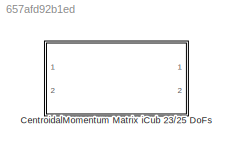
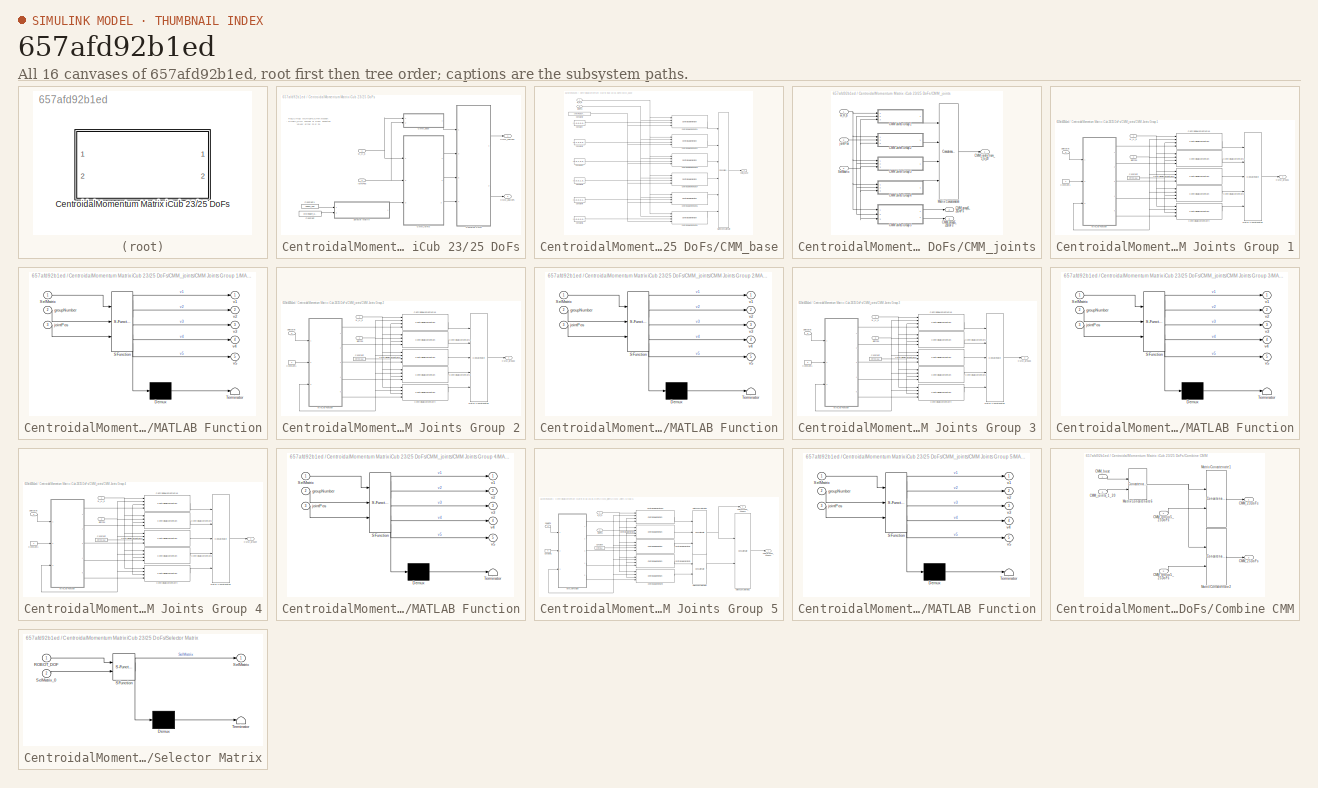
[diagram: thumbnail index - all 16 canvases of the model, root first then tree order]
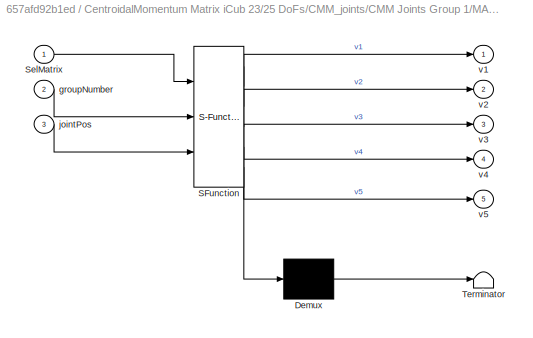
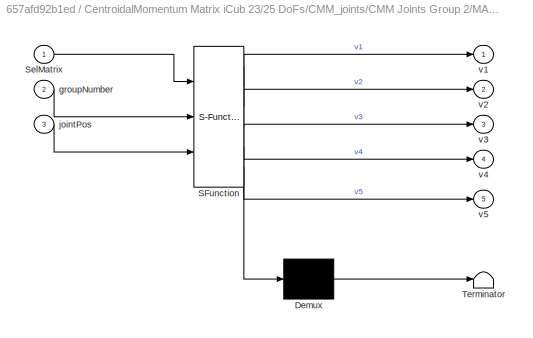
MODEL slx_657afd92b1ed
KIND library
CONFIG AbsTol = auto
CONFIG EnableMultiTasking = off
CONFIG FixedStep = auto
CONFIG MaxStep = auto
CONFIG MinStep = auto
CONFIG RelTol = 1e-3
CONFIG SampleTimeConstraint = Unconstrained
CONFIG Solver = VariableStepAuto
CONFIG SolverName = VariableStepAuto
CONFIG StartTime = 0.0
CONFIG StopTime = 10.0
BLOCK [SubSystem] CentroidalMomentum Matrix iCub 23//25 DoFs
  Ports = [2, 2]
  RequestExecContextInheritance = off
BLOCK [Outport] CentroidalMomentum Matrix iCub 23//25 DoFs/CMM_23DoFs
  VectorParamsAs1DForOutWhenUnconnected = off
BLOCK [Outport] CentroidalMomentum Matrix iCub 23//25 DoFs/CMM_25DoFs
  Port = 2
  VectorParamsAs1DForOutWhenUnconnected = off
BLOCK [SubSystem] CentroidalMomentum Matrix iCub 23//25 DoFs/CMM_base
  Ports = [2, 1]
  RequestExecContextInheritance = off
BLOCK [Outport] CentroidalMomentum Matrix iCub 23//25 DoFs/CMM_base/CMM_base
  VectorParamsAs1DForOutWhenUnconnected = off
BLOCK [Reference] CentroidalMomentum Matrix iCub 23//25 DoFs/CMM_base/CentroidalMomentum21  REF=WBToolboxLibrary/Model/Dynamics/CentroidalMomentum
  Ports = [4, 1]
  SourceBlock = WBToolboxLibrary/Model/Dynamics/CentroidalMomentum
  SourceProductName = WholeBodyToolbox
  SourceType = CentroidalMomentum
BLOCK [Reference] CentroidalMomentum Matrix iCub 23//25 DoFs/CMM_base/CentroidalMomentum22  REF=WBToolboxLibrary/Model/Dynamics/CentroidalMomentum
  Ports = [4, 1]
  SourceBlock = WBToolboxLibrary/Model/Dynamics/CentroidalMomentum
  SourceProductName = WholeBodyToolbox
  SourceType = CentroidalMomentum
BLOCK [Reference] CentroidalMomentum Matrix iCub 23//25 DoFs/CMM_base/CentroidalMomentum23  REF=WBToolboxLibrary/Model/Dynamics/CentroidalMomentum
  Ports = [4, 1]
  SourceBlock = WBToolboxLibrary/Model/Dynamics/CentroidalMomentum
  SourceProductName = WholeBodyToolbox
  SourceType = CentroidalMomentum
BLOCK [Reference] CentroidalMomentum Matrix iCub 23//25 DoFs/CMM_base/CentroidalMomentum24  REF=WBToolboxLibrary/Model/Dynamics/CentroidalMomentum
  Ports = [4, 1]
  SourceBlock = WBToolboxLibrary/Model/Dynamics/CentroidalMomentum
  SourceProductName = WholeBodyToolbox
  SourceType = CentroidalMomentum
BLOCK [Reference] CentroidalMomentum Matrix iCub 23//25 DoFs/CMM_base/CentroidalMomentum25  REF=WBToolboxLibrary/Model/Dynamics/CentroidalMomentum
  Ports = [4, 1]
  SourceBlock = WBToolboxLibrary/Model/Dynamics/CentroidalMomentum
  SourceProductName = WholeBodyToolbox
  SourceType = CentroidalMomentum
BLOCK [Reference] CentroidalMomentum Matrix iCub 23//25 DoFs/CMM_base/CentroidalMomentum31  REF=WBToolboxLibrary/Model/Dynamics/CentroidalMomentum
  Ports = [4, 1]
  SourceBlock = WBToolboxLibrary/Model/Dynamics/CentroidalMomentum
  SourceProductName = WholeBodyToolbox
  SourceType = CentroidalMomentum
BLOCK [Constant] CentroidalMomentum Matrix iCub 23//25 DoFs/CMM_base/Constant
  Value = [1,0,0,0,0,0]
BLOCK [Constant] CentroidalMomentum Matrix iCub 23//25 DoFs/CMM_base/Constant1
  Value = [0,1,0,0,0,0]
BLOCK [Constant] CentroidalMomentum Matrix iCub 23//25 DoFs/CMM_base/Constant2
  Value = zeros(ROBOT_DOF,1)
BLOCK [Constant] CentroidalMomentum Matrix iCub 23//25 DoFs/CMM_base/Constant3
  Value = [0,0,0,1,0,0]
BLOCK [Constant] CentroidalMomentum Matrix iCub 23//25 DoFs/CMM_base/Constant37
  Value = [0,0,1,0,0,0]
BLOCK [Constant] CentroidalMomentum Matrix iCub 23//25 DoFs/CMM_base/Constant4
  Value = [0,0,0,0,1,0]
BLOCK [Constant] CentroidalMomentum Matrix iCub 23//25 DoFs/CMM_base/Constant6
  Value = [0,0,0,0,0,1]
BLOCK [Concatenate] CentroidalMomentum Matrix iCub 23//25 DoFs/CMM_base/Matrix Concatenate
  ConcatenateDimension = 2
  Mode = Multidimensional array
  NumInputs = 6
  Ports = [6, 1]
BLOCK [Inport] CentroidalMomentum Matrix iCub 23//25 DoFs/CMM_base/jointPos
  Port = 2
BLOCK [Inport] CentroidalMomentum Matrix iCub 23//25 DoFs/CMM_base/w_H_b
BLOCK [SubSystem] CentroidalMomentum Matrix iCub 23//25 DoFs/CMM_joints
  Ports = [3, 3]
  RequestExecContextInheritance = off
BLOCK [SubSystem] CentroidalMomentum Matrix iCub 23//25 DoFs/CMM_joints/CMM Joints Group 1
  Ports = [3, 1]
  RequestExecContextInheritance = off
BLOCK [Outport] CentroidalMomentum Matrix iCub 23//25 DoFs/CMM_joints/CMM Joints Group 1/CMM_group1
  VectorParamsAs1DForOutWhenUnconnected = off
BLOCK [Reference] CentroidalMomentum Matrix iCub 23//25 DoFs/CMM_joints/CMM Joints Group 1/CentroidalMomentum1  REF=WBToolboxLibrary/Model/Dynamics/CentroidalMomentum
  Ports = [4, 1]
  SourceBlock = WBToolboxLibrary/Model/Dynamics/CentroidalMomentum
  SourceProductName = WholeBodyToolbox
  SourceType = CentroidalMomentum
BLOCK [Reference] CentroidalMomentum Matrix iCub 23//25 DoFs/CMM_joints/CMM Joints Group 1/CentroidalMomentum16  REF=WBToolboxLibrary/Model/Dynamics/CentroidalMomentum
  Ports = [4, 1]
  SourceBlock = WBToolboxLibrary/Model/Dynamics/CentroidalMomentum
  SourceProductName = WholeBodyToolbox
  SourceType = CentroidalMomentum
BLOCK [Reference] CentroidalMomentum Matrix iCub 23//25 DoFs/CMM_joints/CMM Joints Group 1/CentroidalMomentum2  REF=WBToolboxLibrary/Model/Dynamics/CentroidalMomentum
  Ports = [4, 1]
  SourceBlock = WBToolboxLibrary/Model/Dynamics/CentroidalMomentum
  SourceProductName = WholeBodyToolbox
  SourceType = CentroidalMomentum
BLOCK [Reference] CentroidalMomentum Matrix iCub 23//25 DoFs/CMM_joints/CMM Joints Group 1/CentroidalMomentum3  REF=WBToolboxLibrary/Model/Dynamics/CentroidalMomentum
  Ports = [4, 1]
  SourceBlock = WBToolboxLibrary/Model/Dynamics/CentroidalMomentum
  SourceProductName = WholeBodyToolbox
  SourceType = CentroidalMomentum
BLOCK [Reference] CentroidalMomentum Matrix iCub 23//25 DoFs/CMM_joints/CMM Joints Group 1/CentroidalMomentum4  REF=WBToolboxLibrary/Model/Dynamics/CentroidalMomentum
  Ports = [4, 1]
  SourceBlock = WBToolboxLibrary/Model/Dynamics/CentroidalMomentum
  SourceProductName = WholeBodyToolbox
  SourceType = CentroidalMomentum
BLOCK [Constant] CentroidalMomentum Matrix iCub 23//25 DoFs/CMM_joints/CMM Joints Group 1/Constant
  Value = zeros(6,1)
BLOCK [Constant] CentroidalMomentum Matrix iCub 23//25 DoFs/CMM_joints/CMM Joints Group 1/Constant1
BLOCK [SubSystem] CentroidalMomentum Matrix iCub 23//25 DoFs/CMM_joints/CMM Joints Group 1/MATLAB Function
  ErrorFcn = Stateflow.Translate.translate
  PermitHierarchicalResolution = ExplicitOnly
  Ports = [3, 5]
  RequestExecContextInheritance = off
  SFBlockType = MATLAB Function
  TreatAsAtomicUnit = on
BLOCK [Demux] CentroidalMomentum Matrix iCub 23//25 DoFs/CMM_joints/CMM Joints Group 1/MATLAB Function/ Demux 
  Outputs = 1
  Ports = [1, 1]
BLOCK [S-Function] CentroidalMomentum Matrix iCub 23//25 DoFs/CMM_joints/CMM Joints Group 1/MATLAB Function/ SFunction 
  EnableBusSupport = off
  FunctionName = sf_sfun
  PortCounts = [3 6]
  Ports = [3, 6]
  SFcnIsStateOwnerBlock = off
  SFunctionDeploymentMode = off
  Tag = Stateflow S-Function 9
BLOCK [Terminator] CentroidalMomentum Matrix iCub 23//25 DoFs/CMM_joints/CMM Joints Group 1/MATLAB Function/ Terminator 
BLOCK [Inport] CentroidalMomentum Matrix iCub 23//25 DoFs/CMM_joints/CMM Joints Group 1/MATLAB Function/SelMatrix
BLOCK [Inport] CentroidalMomentum Matrix iCub 23//25 DoFs/CMM_joints/CMM Joints Group 1/MATLAB Function/groupNumber
  Port = 2
BLOCK [Inport] CentroidalMomentum Matrix iCub 23//25 DoFs/CMM_joints/CMM Joints Group 1/MATLAB Function/jointPos
  Port = 3
BLOCK [Outport] CentroidalMomentum Matrix iCub 23//25 DoFs/CMM_joints/CMM Joints Group 1/MATLAB Function/v1
  VectorParamsAs1DForOutWhenUnconnected = off
BLOCK [Outport] CentroidalMomentum Matrix iCub 23//25 DoFs/CMM_joints/CMM Joints Group 1/MATLAB Function/v2
  Port = 2
  VectorParamsAs1DForOutWhenUnconnected = off
BLOCK [Outport] CentroidalMomentum Matrix iCub 23//25 DoFs/CMM_joints/CMM Joints Group 1/MATLAB Function/v3
  Port = 3
  VectorParamsAs1DForOutWhenUnconnected = off
BLOCK [Outport] CentroidalMomentum Matrix iCub 23//25 DoFs/CMM_joints/CMM Joints Group 1/MATLAB Function/v4
  Port = 4
  VectorParamsAs1DForOutWhenUnconnected = off
BLOCK [Outport] CentroidalMomentum Matrix iCub 23//25 DoFs/CMM_joints/CMM Joints Group 1/MATLAB Function/v5
  Port = 5
  VectorParamsAs1DForOutWhenUnconnected = off
BLOCK [Concatenate] CentroidalMomentum Matrix iCub 23//25 DoFs/CMM_joints/CMM Joints Group 1/Matrix Concatenate6
  ConcatenateDimension = 2
  Mode = Multidimensional array
  NumInputs = 5
  Ports = [5, 1]
BLOCK [Inport] CentroidalMomentum Matrix iCub 23//25 DoFs/CMM_joints/CMM Joints Group 1/SelMatrix
  Port = 3
BLOCK [Inport] CentroidalMomentum Matrix iCub 23//25 DoFs/CMM_joints/CMM Joints Group 1/jointPos
  Port = 2
BLOCK [Inport] CentroidalMomentum Matrix iCub 23//25 DoFs/CMM_joints/CMM Joints Group 1/w_H_b
BLOCK [SubSystem] CentroidalMomentum Matrix iCub 23//25 DoFs/CMM_joints/CMM Joints Group 2
  Ports = [3, 1]
  RequestExecContextInheritance = off
BLOCK [Outport] CentroidalMomentum Matrix iCub 23//25 DoFs/CMM_joints/CMM Joints Group 2/CMM_group2
  VectorParamsAs1DForOutWhenUnconnected = off
BLOCK [Reference] CentroidalMomentum Matrix iCub 23//25 DoFs/CMM_joints/CMM Joints Group 2/CentroidalMomentum1  REF=WBToolboxLibrary/Model/Dynamics/CentroidalMomentum
  Ports = [4, 1]
  SourceBlock = WBToolboxLibrary/Model/Dynamics/CentroidalMomentum
  SourceProductName = WholeBodyToolbox
  SourceType = CentroidalMomentum
BLOCK [Reference] CentroidalMomentum Matrix iCub 23//25 DoFs/CMM_joints/CMM Joints Group 2/CentroidalMomentum16  REF=WBToolboxLibrary/Model/Dynamics/CentroidalMomentum
  Ports = [4, 1]
  SourceBlock = WBToolboxLibrary/Model/Dynamics/CentroidalMomentum
  SourceProductName = WholeBodyToolbox
  SourceType = CentroidalMomentum
BLOCK [Reference] CentroidalMomentum Matrix iCub 23//25 DoFs/CMM_joints/CMM Joints Group 2/CentroidalMomentum2  REF=WBToolboxLibrary/Model/Dynamics/CentroidalMomentum
  Ports = [4, 1]
  SourceBlock = WBToolboxLibrary/Model/Dynamics/CentroidalMomentum
  SourceProductName = WholeBodyToolbox
  SourceType = CentroidalMomentum
BLOCK [Reference] CentroidalMomentum Matrix iCub 23//25 DoFs/CMM_joints/CMM Joints Group 2/CentroidalMomentum3  REF=WBToolboxLibrary/Model/Dynamics/CentroidalMomentum
  Ports = [4, 1]
  SourceBlock = WBToolboxLibrary/Model/Dynamics/CentroidalMomentum
  SourceProductName = WholeBodyToolbox
  SourceType = CentroidalMomentum
BLOCK [Reference] CentroidalMomentum Matrix iCub 23//25 DoFs/CMM_joints/CMM Joints Group 2/CentroidalMomentum4  REF=WBToolboxLibrary/Model/Dynamics/CentroidalMomentum
  Ports = [4, 1]
  SourceBlock = WBToolboxLibrary/Model/Dynamics/CentroidalMomentum
  SourceProductName = WholeBodyToolbox
  SourceType = CentroidalMomentum
BLOCK [Constant] CentroidalMomentum Matrix iCub 23//25 DoFs/CMM_joints/CMM Joints Group 2/Constant
  Value = zeros(6,1)
BLOCK [Constant] CentroidalMomentum Matrix iCub 23//25 DoFs/CMM_joints/CMM Joints Group 2/Constant1
  Value = 2
BLOCK [SubSystem] CentroidalMomentum Matrix iCub 23//25 DoFs/CMM_joints/CMM Joints Group 2/MATLAB Function
  ErrorFcn = Stateflow.Translate.translate
  PermitHierarchicalResolution = ExplicitOnly
  Ports = [3, 5]
  RequestExecContextInheritance = off
  SFBlockType = MATLAB Function
  TreatAsAtomicUnit = on
BLOCK [Demux] CentroidalMomentum Matrix iCub 23//25 DoFs/CMM_joints/CMM Joints Group 2/MATLAB Function/ Demux 
  Outputs = 1
  Ports = [1, 1]
BLOCK [S-Function] CentroidalMomentum Matrix iCub 23//25 DoFs/CMM_joints/CMM Joints Group 2/MATLAB Function/ SFunction 
  EnableBusSupport = off
  FunctionName = sf_sfun
  PortCounts = [3 6]
  Ports = [3, 6]
  SFcnIsStateOwnerBlock = off
  SFunctionDeploymentMode = off
  Tag = Stateflow S-Function 22
BLOCK [Terminator] CentroidalMomentum Matrix iCub 23//25 DoFs/CMM_joints/CMM Joints Group 2/MATLAB Function/ Terminator 
BLOCK [Inport] CentroidalMomentum Matrix iCub 23//25 DoFs/CMM_joints/CMM Joints Group 2/MATLAB Function/SelMatrix
BLOCK [Inport] CentroidalMomentum Matrix iCub 23//25 DoFs/CMM_joints/CMM Joints Group 2/MATLAB Function/groupNumber
  Port = 2
BLOCK [Inport] CentroidalMomentum Matrix iCub 23//25 DoFs/CMM_joints/CMM Joints Group 2/MATLAB Function/jointPos
  Port = 3
BLOCK [Outport] CentroidalMomentum Matrix iCub 23//25 DoFs/CMM_joints/CMM Joints Group 2/MATLAB Function/v1
  VectorParamsAs1DForOutWhenUnconnected = off
BLOCK [Outport] CentroidalMomentum Matrix iCub 23//25 DoFs/CMM_joints/CMM Joints Group 2/MATLAB Function/v2
  Port = 2
  VectorParamsAs1DForOutWhenUnconnected = off
BLOCK [Outport] CentroidalMomentum Matrix iCub 23//25 DoFs/CMM_joints/CMM Joints Group 2/MATLAB Function/v3
  Port = 3
  VectorParamsAs1DForOutWhenUnconnected = off
BLOCK [Outport] CentroidalMomentum Matrix iCub 23//25 DoFs/CMM_joints/CMM Joints Group 2/MATLAB Function/v4
  Port = 4
  VectorParamsAs1DForOutWhenUnconnected = off
BLOCK [Outport] CentroidalMomentum Matrix iCub 23//25 DoFs/CMM_joints/CMM Joints Group 2/MATLAB Function/v5
  Port = 5
  VectorParamsAs1DForOutWhenUnconnected = off
BLOCK [Concatenate] CentroidalMomentum Matrix iCub 23//25 DoFs/CMM_joints/CMM Joints Group 2/Matrix Concatenate6
  ConcatenateDimension = 2
  Mode = Multidimensional array
  NumInputs = 5
  Ports = [5, 1]
BLOCK [Inport] CentroidalMomentum Matrix iCub 23//25 DoFs/CMM_joints/CMM Joints Group 2/SelMatrix
  Port = 3
BLOCK [Inport] CentroidalMomentum Matrix iCub 23//25 DoFs/CMM_joints/CMM Joints Group 2/jointPos
  Port = 2
BLOCK [Inport] CentroidalMomentum Matrix iCub 23//25 DoFs/CMM_joints/CMM Joints Group 2/w_H_b
BLOCK [SubSystem] CentroidalMomentum Matrix iCub 23//25 DoFs/CMM_joints/CMM Joints Group 3
  Ports = [3, 1]
  RequestExecContextInheritance = off
BLOCK [Outport] CentroidalMomentum Matrix iCub 23//25 DoFs/CMM_joints/CMM Joints Group 3/CMM_group3
  VectorParamsAs1DForOutWhenUnconnected = off
BLOCK [Reference] CentroidalMomentum Matrix iCub 23//25 DoFs/CMM_joints/CMM Joints Group 3/CentroidalMomentum1  REF=WBToolboxLibrary/Model/Dynamics/CentroidalMomentum
  Ports = [4, 1]
  SourceBlock = WBToolboxLibrary/Model/Dynamics/CentroidalMomentum
  SourceProductName = WholeBodyToolbox
  SourceType = CentroidalMomentum
BLOCK [Reference] CentroidalMomentum Matrix iCub 23//25 DoFs/CMM_joints/CMM Joints Group 3/CentroidalMomentum16  REF=WBToolboxLibrary/Model/Dynamics/CentroidalMomentum
  Ports = [4, 1]
  SourceBlock = WBToolboxLibrary/Model/Dynamics/CentroidalMomentum
  SourceProductName = WholeBodyToolbox
  SourceType = CentroidalMomentum
BLOCK [Reference] CentroidalMomentum Matrix iCub 23//25 DoFs/CMM_joints/CMM Joints Group 3/CentroidalMomentum2  REF=WBToolboxLibrary/Model/Dynamics/CentroidalMomentum
  Ports = [4, 1]
  SourceBlock = WBToolboxLibrary/Model/Dynamics/CentroidalMomentum
  SourceProductName = WholeBodyToolbox
  SourceType = CentroidalMomentum
BLOCK [Reference] CentroidalMomentum Matrix iCub 23//25 DoFs/CMM_joints/CMM Joints Group 3/CentroidalMomentum3  REF=WBToolboxLibrary/Model/Dynamics/CentroidalMomentum
  Ports = [4, 1]
  SourceBlock = WBToolboxLibrary/Model/Dynamics/CentroidalMomentum
  SourceProductName = WholeBodyToolbox
  SourceType = CentroidalMomentum
BLOCK [Reference] CentroidalMomentum Matrix iCub 23//25 DoFs/CMM_joints/CMM Joints Group 3/CentroidalMomentum4  REF=WBToolboxLibrary/Model/Dynamics/CentroidalMomentum
  Ports = [4, 1]
  SourceBlock = WBToolboxLibrary/Model/Dynamics/CentroidalMomentum
  SourceProductName = WholeBodyToolbox
  SourceType = CentroidalMomentum
BLOCK [Constant] CentroidalMomentum Matrix iCub 23//25 DoFs/CMM_joints/CMM Joints Group 3/Constant
  Value = zeros(6,1)
BLOCK [Constant] CentroidalMomentum Matrix iCub 23//25 DoFs/CMM_joints/CMM Joints Group 3/Constant1
  Value = 3
BLOCK [SubSystem] CentroidalMomentum Matrix iCub 23//25 DoFs/CMM_joints/CMM Joints Group 3/MATLAB Function
  ErrorFcn = Stateflow.Translate.translate
  PermitHierarchicalResolution = ExplicitOnly
  Ports = [3, 5]
  RequestExecContextInheritance = off
  SFBlockType = MATLAB Function
  TreatAsAtomicUnit = on
BLOCK [Demux] CentroidalMomentum Matrix iCub 23//25 DoFs/CMM_joints/CMM Joints Group 3/MATLAB Function/ Demux 
  Outputs = 1
  Ports = [1, 1]
BLOCK [S-Function] CentroidalMomentum Matrix iCub 23//25 DoFs/CMM_joints/CMM Joints Group 3/MATLAB Function/ SFunction 
  EnableBusSupport = off
  FunctionName = sf_sfun
  PortCounts = [3 6]
  Ports = [3, 6]
  SFcnIsStateOwnerBlock = off
  SFunctionDeploymentMode = off
  Tag = Stateflow S-Function 27
BLOCK [Terminator] CentroidalMomentum Matrix iCub 23//25 DoFs/CMM_joints/CMM Joints Group 3/MATLAB Function/ Terminator 
BLOCK [Inport] CentroidalMomentum Matrix iCub 23//25 DoFs/CMM_joints/CMM Joints Group 3/MATLAB Function/SelMatrix
BLOCK [Inport] CentroidalMomentum Matrix iCub 23//25 DoFs/CMM_joints/CMM Joints Group 3/MATLAB Function/groupNumber
  Port = 2
BLOCK [Inport] CentroidalMomentum Matrix iCub 23//25 DoFs/CMM_joints/CMM Joints Group 3/MATLAB Function/jointPos
  Port = 3
BLOCK [Outport] CentroidalMomentum Matrix iCub 23//25 DoFs/CMM_joints/CMM Joints Group 3/MATLAB Function/v1
  VectorParamsAs1DForOutWhenUnconnected = off
BLOCK [Outport] CentroidalMomentum Matrix iCub 23//25 DoFs/CMM_joints/CMM Joints Group 3/MATLAB Function/v2
  Port = 2
  VectorParamsAs1DForOutWhenUnconnected = off
BLOCK [Outport] CentroidalMomentum Matrix iCub 23//25 DoFs/CMM_joints/CMM Joints Group 3/MATLAB Function/v3
  Port = 3
  VectorParamsAs1DForOutWhenUnconnected = off
BLOCK [Outport] CentroidalMomentum Matrix iCub 23//25 DoFs/CMM_joints/CMM Joints Group 3/MATLAB Function/v4
  Port = 4
  VectorParamsAs1DForOutWhenUnconnected = off
BLOCK [Outport] CentroidalMomentum Matrix iCub 23//25 DoFs/CMM_joints/CMM Joints Group 3/MATLAB Function/v5
  Port = 5
  VectorParamsAs1DForOutWhenUnconnected = off
BLOCK [Concatenate] CentroidalMomentum Matrix iCub 23//25 DoFs/CMM_joints/CMM Joints Group 3/Matrix Concatenate6
  ConcatenateDimension = 2
  Mode = Multidimensional array
  NumInputs = 5
  Ports = [5, 1]
BLOCK [Inport] CentroidalMomentum Matrix iCub 23//25 DoFs/CMM_joints/CMM Joints Group 3/SelMatrix
  Port = 3
BLOCK [Inport] CentroidalMomentum Matrix iCub 23//25 DoFs/CMM_joints/CMM Joints Group 3/jointPos
  Port = 2
BLOCK [Inport] CentroidalMomentum Matrix iCub 23//25 DoFs/CMM_joints/CMM Joints Group 3/w_H_b
BLOCK [SubSystem] CentroidalMomentum Matrix iCub 23//25 DoFs/CMM_joints/CMM Joints Group 4
  Ports = [3, 1]
  RequestExecContextInheritance = off
BLOCK [Outport] CentroidalMomentum Matrix iCub 23//25 DoFs/CMM_joints/CMM Joints Group 4/CMM_group4
  VectorParamsAs1DForOutWhenUnconnected = off
BLOCK [Reference] CentroidalMomentum Matrix iCub 23//25 DoFs/CMM_joints/CMM Joints Group 4/CentroidalMomentum1  REF=WBToolboxLibrary/Model/Dynamics/CentroidalMomentum
  Ports = [4, 1]
  SourceBlock = WBToolboxLibrary/Model/Dynamics/CentroidalMomentum
  SourceProductName = WholeBodyToolbox
  SourceType = CentroidalMomentum
BLOCK [Reference] CentroidalMomentum Matrix iCub 23//25 DoFs/CMM_joints/CMM Joints Group 4/CentroidalMomentum16  REF=WBToolboxLibrary/Model/Dynamics/CentroidalMomentum
  Ports = [4, 1]
  SourceBlock = WBToolboxLibrary/Model/Dynamics/CentroidalMomentum
  SourceProductName = WholeBodyToolbox
  SourceType = CentroidalMomentum
BLOCK [Reference] CentroidalMomentum Matrix iCub 23//25 DoFs/CMM_joints/CMM Joints Group 4/CentroidalMomentum2  REF=WBToolboxLibrary/Model/Dynamics/CentroidalMomentum
  Ports = [4, 1]
  SourceBlock = WBToolboxLibrary/Model/Dynamics/CentroidalMomentum
  SourceProductName = WholeBodyToolbox
  SourceType = CentroidalMomentum
BLOCK [Reference] CentroidalMomentum Matrix iCub 23//25 DoFs/CMM_joints/CMM Joints Group 4/CentroidalMomentum3  REF=WBToolboxLibrary/Model/Dynamics/CentroidalMomentum
  Ports = [4, 1]
  SourceBlock = WBToolboxLibrary/Model/Dynamics/CentroidalMomentum
  SourceProductName = WholeBodyToolbox
  SourceType = CentroidalMomentum
BLOCK [Reference] CentroidalMomentum Matrix iCub 23//25 DoFs/CMM_joints/CMM Joints Group 4/CentroidalMomentum4  REF=WBToolboxLibrary/Model/Dynamics/CentroidalMomentum
  Ports = [4, 1]
  SourceBlock = WBToolboxLibrary/Model/Dynamics/CentroidalMomentum
  SourceProductName = WholeBodyToolbox
  SourceType = CentroidalMomentum
BLOCK [Constant] CentroidalMomentum Matrix iCub 23//25 DoFs/CMM_joints/CMM Joints Group 4/Constant
  Value = zeros(6,1)
BLOCK [Constant] CentroidalMomentum Matrix iCub 23//25 DoFs/CMM_joints/CMM Joints Group 4/Constant1
  Value = 4
BLOCK [SubSystem] CentroidalMomentum Matrix iCub 23//25 DoFs/CMM_joints/CMM Joints Group 4/MATLAB Function
  ErrorFcn = Stateflow.Translate.translate
  PermitHierarchicalResolution = ExplicitOnly
  Ports = [3, 5]
  RequestExecContextInheritance = off
  SFBlockType = MATLAB Function
  TreatAsAtomicUnit = on
BLOCK [Demux] CentroidalMomentum Matrix iCub 23//25 DoFs/CMM_joints/CMM Joints Group 4/MATLAB Function/ Demux 
  Outputs = 1
  Ports = [1, 1]
BLOCK [S-Function] CentroidalMomentum Matrix iCub 23//25 DoFs/CMM_joints/CMM Joints Group 4/MATLAB Function/ SFunction 
  EnableBusSupport = off
  FunctionName = sf_sfun
  PortCounts = [3 6]
  Ports = [3, 6]
  SFcnIsStateOwnerBlock = off
  SFunctionDeploymentMode = off
  Tag = Stateflow S-Function 28
BLOCK [Terminator] CentroidalMomentum Matrix iCub 23//25 DoFs/CMM_joints/CMM Joints Group 4/MATLAB Function/ Terminator 
BLOCK [Inport] CentroidalMomentum Matrix iCub 23//25 DoFs/CMM_joints/CMM Joints Group 4/MATLAB Function/SelMatrix
BLOCK [Inport] CentroidalMomentum Matrix iCub 23//25 DoFs/CMM_joints/CMM Joints Group 4/MATLAB Function/groupNumber
  Port = 2
BLOCK [Inport] CentroidalMomentum Matrix iCub 23//25 DoFs/CMM_joints/CMM Joints Group 4/MATLAB Function/jointPos
  Port = 3
BLOCK [Outport] CentroidalMomentum Matrix iCub 23//25 DoFs/CMM_joints/CMM Joints Group 4/MATLAB Function/v1
  VectorParamsAs1DForOutWhenUnconnected = off
BLOCK [Outport] CentroidalMomentum Matrix iCub 23//25 DoFs/CMM_joints/CMM Joints Group 4/MATLAB Function/v2
  Port = 2
  VectorParamsAs1DForOutWhenUnconnected = off
BLOCK [Outport] CentroidalMomentum Matrix iCub 23//25 DoFs/CMM_joints/CMM Joints Group 4/MATLAB Function/v3
  Port = 3
  VectorParamsAs1DForOutWhenUnconnected = off
BLOCK [Outport] CentroidalMomentum Matrix iCub 23//25 DoFs/CMM_joints/CMM Joints Group 4/MATLAB Function/v4
  Port = 4
  VectorParamsAs1DForOutWhenUnconnected = off
BLOCK [Outport] CentroidalMomentum Matrix iCub 23//25 DoFs/CMM_joints/CMM Joints Group 4/MATLAB Function/v5
  Port = 5
  VectorParamsAs1DForOutWhenUnconnected = off
BLOCK [Concatenate] CentroidalMomentum Matrix iCub 23//25 DoFs/CMM_joints/CMM Joints Group 4/Matrix Concatenate6
  ConcatenateDimension = 2
  Mode = Multidimensional array
  NumInputs = 5
  Ports = [5, 1]
BLOCK [Inport] CentroidalMomentum Matrix iCub 23//25 DoFs/CMM_joints/CMM Joints Group 4/SelMatrix
  Port = 3
BLOCK [Inport] CentroidalMomentum Matrix iCub 23//25 DoFs/CMM_joints/CMM Joints Group 4/jointPos
  Port = 2
BLOCK [Inport] CentroidalMomentum Matrix iCub 23//25 DoFs/CMM_joints/CMM Joints Group 4/w_H_b
BLOCK [SubSystem] CentroidalMomentum Matrix iCub 23//25 DoFs/CMM_joints/CMM Joints Group 5
  Ports = [3, 2]
  RequestExecContextInheritance = off
BLOCK [Outport] CentroidalMomentum Matrix iCub 23//25 DoFs/CMM_joints/CMM Joints Group 5/CMM_group5_23DoFs
  Port = 2
  VectorParamsAs1DForOutWhenUnconnected = off
BLOCK [Outport] CentroidalMomentum Matrix iCub 23//25 DoFs/CMM_joints/CMM Joints Group 5/CMM_group5_25DoFs
  VectorParamsAs1DForOutWhenUnconnected = off
BLOCK [Reference] CentroidalMomentum Matrix iCub 23//25 DoFs/CMM_joints/CMM Joints Group 5/CentroidalMomentum1  REF=WBToolboxLibrary/Model/Dynamics/CentroidalMomentum
  Ports = [4, 1]
  SourceBlock = WBToolboxLibrary/Model/Dynamics/CentroidalMomentum
  SourceProductName = WholeBodyToolbox
  SourceType = CentroidalMomentum
BLOCK [Reference] CentroidalMomentum Matrix iCub 23//25 DoFs/CMM_joints/CMM Joints Group 5/CentroidalMomentum16  REF=WBToolboxLibrary/Model/Dynamics/CentroidalMomentum
  Ports = [4, 1]
  SourceBlock = WBToolboxLibrary/Model/Dynamics/CentroidalMomentum
  SourceProductName = WholeBodyToolbox
  SourceType = CentroidalMomentum
BLOCK [Reference] CentroidalMomentum Matrix iCub 23//25 DoFs/CMM_joints/CMM Joints Group 5/CentroidalMomentum2  REF=WBToolboxLibrary/Model/Dynamics/CentroidalMomentum
  Ports = [4, 1]
  SourceBlock = WBToolboxLibrary/Model/Dynamics/CentroidalMomentum
  SourceProductName = WholeBodyToolbox
  SourceType = CentroidalMomentum
BLOCK [Reference] CentroidalMomentum Matrix iCub 23//25 DoFs/CMM_joints/CMM Joints Group 5/CentroidalMomentum3  REF=WBToolboxLibrary/Model/Dynamics/CentroidalMomentum
  Ports = [4, 1]
  SourceBlock = WBToolboxLibrary/Model/Dynamics/CentroidalMomentum
  SourceProductName = WholeBodyToolbox
  SourceType = CentroidalMomentum
BLOCK [Reference] CentroidalMomentum Matrix iCub 23//25 DoFs/CMM_joints/CMM Joints Group 5/CentroidalMomentum4  REF=WBToolboxLibrary/Model/Dynamics/CentroidalMomentum
  Ports = [4, 1]
  SourceBlock = WBToolboxLibrary/Model/Dynamics/CentroidalMomentum
  SourceProductName = WholeBodyToolbox
  SourceType = CentroidalMomentum
BLOCK [Constant] CentroidalMomentum Matrix iCub 23//25 DoFs/CMM_joints/CMM Joints Group 5/Constant
  Value = zeros(6,1)
BLOCK [Constant] CentroidalMomentum Matrix iCub 23//25 DoFs/CMM_joints/CMM Joints Group 5/Constant1
  Value = 5
BLOCK [SubSystem] CentroidalMomentum Matrix iCub 23//25 DoFs/CMM_joints/CMM Joints Group 5/MATLAB Function
  ErrorFcn = Stateflow.Translate.translate
  PermitHierarchicalResolution = ExplicitOnly
  Ports = [3, 5]
  RequestExecContextInheritance = off
  SFBlockType = MATLAB Function
  TreatAsAtomicUnit = on
BLOCK [Demux] CentroidalMomentum Matrix iCub 23//25 DoFs/CMM_joints/CMM Joints Group 5/MATLAB Function/ Demux 
  Outputs = 1
  Ports = [1, 1]
BLOCK [S-Function] CentroidalMomentum Matrix iCub 23//25 DoFs/CMM_joints/CMM Joints Group 5/MATLAB Function/ SFunction 
  EnableBusSupport = off
  FunctionName = sf_sfun
  PortCounts = [3 6]
  Ports = [3, 6]
  SFcnIsStateOwnerBlock = off
  SFunctionDeploymentMode = off
  Tag = Stateflow S-Function 29
BLOCK [Terminator] CentroidalMomentum Matrix iCub 23//25 DoFs/CMM_joints/CMM Joints Group 5/MATLAB Function/ Terminator 
BLOCK [Inport] CentroidalMomentum Matrix iCub 23//25 DoFs/CMM_joints/CMM Joints Group 5/MATLAB Function/SelMatrix
BLOCK [Inport] CentroidalMomentum Matrix iCub 23//25 DoFs/CMM_joints/CMM Joints Group 5/MATLAB Function/groupNumber
  Port = 2
BLOCK [Inport] CentroidalMomentum Matrix iCub 23//25 DoFs/CMM_joints/CMM Joints Group 5/MATLAB Function/jointPos
  Port = 3
BLOCK [Outport] CentroidalMomentum Matrix iCub 23//25 DoFs/CMM_joints/CMM Joints Group 5/MATLAB Function/v1
  VectorParamsAs1DForOutWhenUnconnected = off
BLOCK [Outport] CentroidalMomentum Matrix iCub 23//25 DoFs/CMM_joints/CMM Joints Group 5/MATLAB Function/v2
  Port = 2
  VectorParamsAs1DForOutWhenUnconnected = off
BLOCK [Outport] CentroidalMomentum Matrix iCub 23//25 DoFs/CMM_joints/CMM Joints Group 5/MATLAB Function/v3
  Port = 3
  VectorParamsAs1DForOutWhenUnconnected = off
BLOCK [Outport] CentroidalMomentum Matrix iCub 23//25 DoFs/CMM_joints/CMM Joints Group 5/MATLAB Function/v4
  Port = 4
  VectorParamsAs1DForOutWhenUnconnected = off
BLOCK [Outport] CentroidalMomentum Matrix iCub 23//25 DoFs/CMM_joints/CMM Joints Group 5/MATLAB Function/v5
  Port = 5
  VectorParamsAs1DForOutWhenUnconnected = off
BLOCK [Concatenate] CentroidalMomentum Matrix iCub 23//25 DoFs/CMM_joints/CMM Joints Group 5/Matrix Concatenate1
  ConcatenateDimension = 2
  Mode = Multidimensional array
  Ports = [2, 1]
BLOCK [Concatenate] CentroidalMomentum Matrix iCub 23//25 DoFs/CMM_joints/CMM Joints Group 5/Matrix Concatenate2
  ConcatenateDimension = 2
  Mode = Multidimensional array
  Ports = [2, 1]
BLOCK [Concatenate] CentroidalMomentum Matrix iCub 23//25 DoFs/CMM_joints/CMM Joints Group 5/Matrix Concatenate6
  ConcatenateDimension = 2
  Mode = Multidimensional array
  NumInputs = 3
  Ports = [3, 1]
BLOCK [Inport] CentroidalMomentum Matrix iCub 23//25 DoFs/CMM_joints/CMM Joints Group 5/SelMatrix
  Port = 3
BLOCK [Inport] CentroidalMomentum Matrix iCub 23//25 DoFs/CMM_joints/CMM Joints Group 5/jointPos
  Port = 2
BLOCK [Inport] CentroidalMomentum Matrix iCub 23//25 DoFs/CMM_joints/CMM Joints Group 5/w_H_b
BLOCK [Outport] CentroidalMomentum Matrix iCub 23//25 DoFs/CMM_joints/CMM_group5_23DoFs
  Port = 3
  VectorParamsAs1DForOutWhenUnconnected = off
BLOCK [Outport] CentroidalMomentum Matrix iCub 23//25 DoFs/CMM_joints/CMM_group5_25DoFs
  Port = 2
  VectorParamsAs1DForOutWhenUnconnected = off
BLOCK [Outport] CentroidalMomentum Matrix iCub 23//25 DoFs/CMM_joints/CMM_joints_from_1_to_20
  VectorParamsAs1DForOutWhenUnconnected = off
BLOCK [Concatenate] CentroidalMomentum Matrix iCub 23//25 DoFs/CMM_joints/Matrix Concatenate6
  ConcatenateDimension = 2
  Mode = Multidimensional array
  NumInputs = 4
  Ports = [4, 1]
BLOCK [Inport] CentroidalMomentum Matrix iCub 23//25 DoFs/CMM_joints/SelMatrix
  Port = 3
BLOCK [Inport] CentroidalMomentum Matrix iCub 23//25 DoFs/CMM_joints/jointPos
  Port = 2
BLOCK [Inport] CentroidalMomentum Matrix iCub 23//25 DoFs/CMM_joints/w_H_b
BLOCK [SubSystem] CentroidalMomentum Matrix iCub 23//25 DoFs/Combine CMM
  Ports = [4, 2]
  RequestExecContextInheritance = off
BLOCK [Outport] CentroidalMomentum Matrix iCub 23//25 DoFs/Combine CMM/CMM_23DoFs
  VectorParamsAs1DForOutWhenUnconnected = off
BLOCK [Outport] CentroidalMomentum Matrix iCub 23//25 DoFs/Combine CMM/CMM_25DoFs
  Port = 2
  VectorParamsAs1DForOutWhenUnconnected = off
BLOCK [Inport] CentroidalMomentum Matrix iCub 23//25 DoFs/Combine CMM/CMM_base
BLOCK [Inport] CentroidalMomentum Matrix iCub 23//25 DoFs/Combine CMM/CMM_group5_23DoFs
  Port = 4
BLOCK [Inport] CentroidalMomentum Matrix iCub 23//25 DoFs/Combine CMM/CMM_group5_25DoFs
  Port = 3
BLOCK [Inport] CentroidalMomentum Matrix iCub 23//25 DoFs/Combine CMM/CMM_joints_1_20
  Port = 2
BLOCK [Concatenate] CentroidalMomentum Matrix iCub 23//25 DoFs/Combine CMM/Matrix Concatenate1
  ConcatenateDimension = 2
  Mode = Multidimensional array
  Ports = [2, 1]
BLOCK [Concatenate] CentroidalMomentum Matrix iCub 23//25 DoFs/Combine CMM/Matrix Concatenate2
  ConcatenateDimension = 2
  Mode = Multidimensional array
  Ports = [2, 1]
BLOCK [Concatenate] CentroidalMomentum Matrix iCub 23//25 DoFs/Combine CMM/Matrix Concatenate6
  ConcatenateDimension = 2
  Mode = Multidimensional array
  Ports = [2, 1]
BLOCK [Constant] CentroidalMomentum Matrix iCub 23//25 DoFs/Constant
  Value = eye(ROBOT_DOF)
BLOCK [Constant] CentroidalMomentum Matrix iCub 23//25 DoFs/Constant1
  Value = ROBOT_DOF
BLOCK [SubSystem] CentroidalMomentum Matrix iCub 23//25 DoFs/Selector Matrix
  ErrorFcn = Stateflow.Translate.translate
  PermitHierarchicalResolution = ExplicitOnly
  Ports = [2, 1]
  RequestExecContextInheritance = off
  SFBlockType = MATLAB Function
  TreatAsAtomicUnit = on
BLOCK [Demux] CentroidalMomentum Matrix iCub 23//25 DoFs/Selector Matrix/ Demux 
  Outputs = 1
  Ports = [1, 1]
BLOCK [S-Function] CentroidalMomentum Matrix iCub 23//25 DoFs/Selector Matrix/ SFunction 
  EnableBusSupport = off
  FunctionName = sf_sfun
  PortCounts = [2 2]
  Ports = [2, 2]
  SFcnIsStateOwnerBlock = off
  SFunctionDeploymentMode = off
  Tag = Stateflow S-Function 30
BLOCK [Terminator] CentroidalMomentum Matrix iCub 23//25 DoFs/Selector Matrix/ Terminator 
BLOCK [Inport] CentroidalMomentum Matrix iCub 23//25 DoFs/Selector Matrix/ROBOT_DOF
BLOCK [Outport] CentroidalMomentum Matrix iCub 23//25 DoFs/Selector Matrix/SelMatrix
  VectorParamsAs1DForOutWhenUnconnected = off
BLOCK [Inport] CentroidalMomentum Matrix iCub 23//25 DoFs/Selector Matrix/SelMatrix_0
  Port = 2
BLOCK [Inport] CentroidalMomentum Matrix iCub 23//25 DoFs/jointPos
  Port = 2
BLOCK [Inport] CentroidalMomentum Matrix iCub 23//25 DoFs/w_H_b
ANNOTATION CentroidalMomentum Matrix iCub 23//25 DoFs: REQUIRED WORKSPACE PARAMETER: - ROBOT_DOF : number of DoFs. Expected values: either 23 or 25.
LINE CentroidalMomentum Matrix iCub 23//25 DoFs/CMM_base/CentroidalMomentum21:1 -> CentroidalMomentum Matrix iCub 23//25 DoFs/CMM_base/Matrix Concatenate:1
LINE CentroidalMomentum Matrix iCub 23//25 DoFs/CMM_base/CentroidalMomentum22:1 -> CentroidalMomentum Matrix iCub 23//25 DoFs/CMM_base/Matrix Concatenate:2
LINE CentroidalMomentum Matrix iCub 23//25 DoFs/CMM_base/CentroidalMomentum23:1 -> CentroidalMomentum Matrix iCub 23//25 DoFs/CMM_base/Matrix Concatenate:3
LINE CentroidalMomentum Matrix iCub 23//25 DoFs/CMM_base/CentroidalMomentum24:1 -> CentroidalMomentum Matrix iCub 23//25 DoFs/CMM_base/Matrix Concatenate:4
LINE CentroidalMomentum Matrix iCub 23//25 DoFs/CMM_base/CentroidalMomentum25:1 -> CentroidalMomentum Matrix iCub 23//25 DoFs/CMM_base/Matrix Concatenate:5
LINE CentroidalMomentum Matrix iCub 23//25 DoFs/CMM_base/CentroidalMomentum31:1 -> CentroidalMomentum Matrix iCub 23//25 DoFs/CMM_base/Matrix Concatenate:6
LINE CentroidalMomentum Matrix iCub 23//25 DoFs/CMM_base/Constant1:1 -> CentroidalMomentum Matrix iCub 23//25 DoFs/CMM_base/CentroidalMomentum22:3
NET CentroidalMomentum Matrix iCub 23//25 DoFs/CMM_base/Constant2:1 -> CentroidalMomentum Matrix iCub 23//25 DoFs/CMM_base/CentroidalMomentum21:4, CentroidalMomentum Matrix iCub 23//25 DoFs/CMM_base/CentroidalMomentum22:4, CentroidalMomentum Matrix iCub 23//25 DoFs/CMM_base/CentroidalMomentum23:4, CentroidalMomentum Matrix iCub 23//25 DoFs/CMM_base/CentroidalMomentum24:4, CentroidalMomentum Matrix iCub 23//25 DoFs/CMM_base/CentroidalMomentum25:4, CentroidalMomentum Matrix iCub 23//25 DoFs/CMM_base/CentroidalMomentum31:4
LINE CentroidalMomentum Matrix iCub 23//25 DoFs/CMM_base/Constant37:1 -> CentroidalMomentum Matrix iCub 23//25 DoFs/CMM_base/CentroidalMomentum23:3
LINE CentroidalMomentum Matrix iCub 23//25 DoFs/CMM_base/Constant3:1 -> CentroidalMomentum Matrix iCub 23//25 DoFs/CMM_base/CentroidalMomentum24:3
LINE CentroidalMomentum Matrix iCub 23//25 DoFs/CMM_base/Constant4:1 -> CentroidalMomentum Matrix iCub 23//25 DoFs/CMM_base/CentroidalMomentum25:3
LINE CentroidalMomentum Matrix iCub 23//25 DoFs/CMM_base/Constant6:1 -> CentroidalMomentum Matrix iCub 23//25 DoFs/CMM_base/CentroidalMomentum31:3
LINE CentroidalMomentum Matrix iCub 23//25 DoFs/CMM_base/Constant:1 -> CentroidalMomentum Matrix iCub 23//25 DoFs/CMM_base/CentroidalMomentum21:3
LINE CentroidalMomentum Matrix iCub 23//25 DoFs/CMM_base/Matrix Concatenate:1 -> CentroidalMomentum Matrix iCub 23//25 DoFs/CMM_base/CMM_base:1
NET CentroidalMomentum Matrix iCub 23//25 DoFs/CMM_base/jointPos:1 -> CentroidalMomentum Matrix iCub 23//25 DoFs/CMM_base/CentroidalMomentum21:2, CentroidalMomentum Matrix iCub 23//25 DoFs/CMM_base/CentroidalMomentum22:2, CentroidalMomentum Matrix iCub 23//25 DoFs/CMM_base/CentroidalMomentum23:2, CentroidalMomentum Matrix iCub 23//25 DoFs/CMM_base/CentroidalMomentum24:2, CentroidalMomentum Matrix iCub 23//25 DoFs/CMM_base/CentroidalMomentum25:2, CentroidalMomentum Matrix iCub 23//25 DoFs/CMM_base/CentroidalMomentum31:2
NET CentroidalMomentum Matrix iCub 23//25 DoFs/CMM_base/w_H_b:1 -> CentroidalMomentum Matrix iCub 23//25 DoFs/CMM_base/CentroidalMomentum21:1, CentroidalMomentum Matrix iCub 23//25 DoFs/CMM_base/CentroidalMomentum22:1, CentroidalMomentum Matrix iCub 23//25 DoFs/CMM_base/CentroidalMomentum23:1, CentroidalMomentum Matrix iCub 23//25 DoFs/CMM_base/CentroidalMomentum24:1, CentroidalMomentum Matrix iCub 23//25 DoFs/CMM_base/CentroidalMomentum25:1, CentroidalMomentum Matrix iCub 23//25 DoFs/CMM_base/CentroidalMomentum31:1
LINE CentroidalMomentum Matrix iCub 23//25 DoFs/CMM_base:1 -> CentroidalMomentum Matrix iCub 23//25 DoFs/Combine CMM:1
LINE CentroidalMomentum Matrix iCub 23//25 DoFs/CMM_joints/CMM Joints Group 1/CentroidalMomentum16:1 -> CentroidalMomentum Matrix iCub 23//25 DoFs/CMM_joints/CMM Joints Group 1/Matrix Concatenate6:1
LINE CentroidalMomentum Matrix iCub 23//25 DoFs/CMM_joints/CMM Joints Group 1/CentroidalMomentum1:1 -> CentroidalMomentum Matrix iCub 23//25 DoFs/CMM_joints/CMM Joints Group 1/Matrix Concatenate6:2
LINE CentroidalMomentum Matrix iCub 23//25 DoFs/CMM_joints/CMM Joints Group 1/CentroidalMomentum2:1 -> CentroidalMomentum Matrix iCub 23//25 DoFs/CMM_joints/CMM Joints Group 1/Matrix Concatenate6:3
LINE CentroidalMomentum Matrix iCub 23//25 DoFs/CMM_joints/CMM Joints Group 1/CentroidalMomentum3:1 -> CentroidalMomentum Matrix iCub 23//25 DoFs/CMM_joints/CMM Joints Group 1/Matrix Concatenate6:4
LINE CentroidalMomentum Matrix iCub 23//25 DoFs/CMM_joints/CMM Joints Group 1/CentroidalMomentum4:1 -> CentroidalMomentum Matrix iCub 23//25 DoFs/CMM_joints/CMM Joints Group 1/Matrix Concatenate6:5
LINE CentroidalMomentum Matrix iCub 23//25 DoFs/CMM_joints/CMM Joints Group 1/Constant1:1 -> CentroidalMomentum Matrix iCub 23//25 DoFs/CMM_joints/CMM Joints Group 1/MATLAB Function:2
NET CentroidalMomentum Matrix iCub 23//25 DoFs/CMM_joints/CMM Joints Group 1/Constant:1 -> CentroidalMomentum Matrix iCub 23//25 DoFs/CMM_joints/CMM Joints Group 1/CentroidalMomentum16:3, CentroidalMomentum Matrix iCub 23//25 DoFs/CMM_joints/CMM Joints Group 1/CentroidalMomentum1:3, CentroidalMomentum Matrix iCub 23//25 DoFs/CMM_joints/CMM Joints Group 1/CentroidalMomentum2:3, CentroidalMomentum Matrix iCub 23//25 DoFs/CMM_joints/CMM Joints Group 1/CentroidalMomentum3:3, CentroidalMomentum Matrix iCub 23//25 DoFs/CMM_joints/CMM Joints Group 1/CentroidalMomentum4:3
LINE CentroidalMomentum Matrix iCub 23//25 DoFs/CMM_joints/CMM Joints Group 1/MATLAB Function:1 -> CentroidalMomentum Matrix iCub 23//25 DoFs/CMM_joints/CMM Joints Group 1/CentroidalMomentum16:4
LINE CentroidalMomentum Matrix iCub 23//25 DoFs/CMM_joints/CMM Joints Group 1/MATLAB Function:2 -> CentroidalMomentum Matrix iCub 23//25 DoFs/CMM_joints/CMM Joints Group 1/CentroidalMomentum1:4
LINE CentroidalMomentum Matrix iCub 23//25 DoFs/CMM_joints/CMM Joints Group 1/MATLAB Function:3 -> CentroidalMomentum Matrix iCub 23//25 DoFs/CMM_joints/CMM Joints Group 1/CentroidalMomentum2:4
LINE CentroidalMomentum Matrix iCub 23//25 DoFs/CMM_joints/CMM Joints Group 1/MATLAB Function:4 -> CentroidalMomentum Matrix iCub 23//25 DoFs/CMM_joints/CMM Joints Group 1/CentroidalMomentum3:4
LINE CentroidalMomentum Matrix iCub 23//25 DoFs/CMM_joints/CMM Joints Group 1/MATLAB Function:5 -> CentroidalMomentum Matrix iCub 23//25 DoFs/CMM_joints/CMM Joints Group 1/CentroidalMomentum4:4
LINE CentroidalMomentum Matrix iCub 23//25 DoFs/CMM_joints/CMM Joints Group 1/Matrix Concatenate6:1 -> CentroidalMomentum Matrix iCub 23//25 DoFs/CMM_joints/CMM Joints Group 1/CMM_group1:1
LINE CentroidalMomentum Matrix iCub 23//25 DoFs/CMM_joints/CMM Joints Group 1/SelMatrix:1 -> CentroidalMomentum Matrix iCub 23//25 DoFs/CMM_joints/CMM Joints Group 1/MATLAB Function:1
NET CentroidalMomentum Matrix iCub 23//25 DoFs/CMM_joints/CMM Joints Group 1/jointPos:1 -> CentroidalMomentum Matrix iCub 23//25 DoFs/CMM_joints/CMM Joints Group 1/CentroidalMomentum16:2, CentroidalMomentum Matrix iCub 23//25 DoFs/CMM_joints/CMM Joints Group 1/CentroidalMomentum1:2, CentroidalMomentum Matrix iCub 23//25 DoFs/CMM_joints/CMM Joints Group 1/CentroidalMomentum2:2, CentroidalMomentum Matrix iCub 23//25 DoFs/CMM_joints/CMM Joints Group 1/CentroidalMomentum3:2, CentroidalMomentum Matrix iCub 23//25 DoFs/CMM_joints/CMM Joints Group 1/CentroidalMomentum4:2, CentroidalMomentum Matrix iCub 23//25 DoFs/CMM_joints/CMM Joints Group 1/MATLAB Function:3
NET CentroidalMomentum Matrix iCub 23//25 DoFs/CMM_joints/CMM Joints Group 1/w_H_b:1 -> CentroidalMomentum Matrix iCub 23//25 DoFs/CMM_joints/CMM Joints Group 1/CentroidalMomentum16:1, CentroidalMomentum Matrix iCub 23//25 DoFs/CMM_joints/CMM Joints Group 1/CentroidalMomentum1:1, CentroidalMomentum Matrix iCub 23//25 DoFs/CMM_joints/CMM Joints Group 1/CentroidalMomentum2:1, CentroidalMomentum Matrix iCub 23//25 DoFs/CMM_joints/CMM Joints Group 1/CentroidalMomentum3:1, CentroidalMomentum Matrix iCub 23//25 DoFs/CMM_joints/CMM Joints Group 1/CentroidalMomentum4:1
LINE CentroidalMomentum Matrix iCub 23//25 DoFs/CMM_joints/CMM Joints Group 1:1 -> CentroidalMomentum Matrix iCub 23//25 DoFs/CMM_joints/Matrix Concatenate6:1
LINE CentroidalMomentum Matrix iCub 23//25 DoFs/CMM_joints/CMM Joints Group 2/CentroidalMomentum16:1 -> CentroidalMomentum Matrix iCub 23//25 DoFs/CMM_joints/CMM Joints Group 2/Matrix Concatenate6:1
LINE CentroidalMomentum Matrix iCub 23//25 DoFs/CMM_joints/CMM Joints Group 2/CentroidalMomentum1:1 -> CentroidalMomentum Matrix iCub 23//25 DoFs/CMM_joints/CMM Joints Group 2/Matrix Concatenate6:2
LINE CentroidalMomentum Matrix iCub 23//25 DoFs/CMM_joints/CMM Joints Group 2/CentroidalMomentum2:1 -> CentroidalMomentum Matrix iCub 23//25 DoFs/CMM_joints/CMM Joints Group 2/Matrix Concatenate6:3
LINE CentroidalMomentum Matrix iCub 23//25 DoFs/CMM_joints/CMM Joints Group 2/CentroidalMomentum3:1 -> CentroidalMomentum Matrix iCub 23//25 DoFs/CMM_joints/CMM Joints Group 2/Matrix Concatenate6:4
LINE CentroidalMomentum Matrix iCub 23//25 DoFs/CMM_joints/CMM Joints Group 2/CentroidalMomentum4:1 -> CentroidalMomentum Matrix iCub 23//25 DoFs/CMM_joints/CMM Joints Group 2/Matrix Concatenate6:5
LINE CentroidalMomentum Matrix iCub 23//25 DoFs/CMM_joints/CMM Joints Group 2/Constant1:1 -> CentroidalMomentum Matrix iCub 23//25 DoFs/CMM_joints/CMM Joints Group 2/MATLAB Function:2
NET CentroidalMomentum Matrix iCub 23//25 DoFs/CMM_joints/CMM Joints Group 2/Constant:1 -> CentroidalMomentum Matrix iCub 23//25 DoFs/CMM_joints/CMM Joints Group 2/CentroidalMomentum16:3, CentroidalMomentum Matrix iCub 23//25 DoFs/CMM_joints/CMM Joints Group 2/CentroidalMomentum1:3, CentroidalMomentum Matrix iCub 23//25 DoFs/CMM_joints/CMM Joints Group 2/CentroidalMomentum2:3, CentroidalMomentum Matrix iCub 23//25 DoFs/CMM_joints/CMM Joints Group 2/CentroidalMomentum3:3, CentroidalMomentum Matrix iCub 23//25 DoFs/CMM_joints/CMM Joints Group 2/CentroidalMomentum4:3
LINE CentroidalMomentum Matrix iCub 23//25 DoFs/CMM_joints/CMM Joints Group 2/MATLAB Function:1 -> CentroidalMomentum Matrix iCub 23//25 DoFs/CMM_joints/CMM Joints Group 2/CentroidalMomentum16:4
LINE CentroidalMomentum Matrix iCub 23//25 DoFs/CMM_joints/CMM Joints Group 2/MATLAB Function:2 -> CentroidalMomentum Matrix iCub 23//25 DoFs/CMM_joints/CMM Joints Group 2/CentroidalMomentum1:4
LINE CentroidalMomentum Matrix iCub 23//25 DoFs/CMM_joints/CMM Joints Group 2/MATLAB Function:3 -> CentroidalMomentum Matrix iCub 23//25 DoFs/CMM_joints/CMM Joints Group 2/CentroidalMomentum2:4
LINE CentroidalMomentum Matrix iCub 23//25 DoFs/CMM_joints/CMM Joints Group 2/MATLAB Function:4 -> CentroidalMomentum Matrix iCub 23//25 DoFs/CMM_joints/CMM Joints Group 2/CentroidalMomentum3:4
LINE CentroidalMomentum Matrix iCub 23//25 DoFs/CMM_joints/CMM Joints Group 2/MATLAB Function:5 -> CentroidalMomentum Matrix iCub 23//25 DoFs/CMM_joints/CMM Joints Group 2/CentroidalMomentum4:4
LINE CentroidalMomentum Matrix iCub 23//25 DoFs/CMM_joints/CMM Joints Group 2/Matrix Concatenate6:1 -> CentroidalMomentum Matrix iCub 23//25 DoFs/CMM_joints/CMM Joints Group 2/CMM_group2:1
LINE CentroidalMomentum Matrix iCub 23//25 DoFs/CMM_joints/CMM Joints Group 2/SelMatrix:1 -> CentroidalMomentum Matrix iCub 23//25 DoFs/CMM_joints/CMM Joints Group 2/MATLAB Function:1
NET CentroidalMomentum Matrix iCub 23//25 DoFs/CMM_joints/CMM Joints Group 2/jointPos:1 -> CentroidalMomentum Matrix iCub 23//25 DoFs/CMM_joints/CMM Joints Group 2/CentroidalMomentum16:2, CentroidalMomentum Matrix iCub 23//25 DoFs/CMM_joints/CMM Joints Group 2/CentroidalMomentum1:2, CentroidalMomentum Matrix iCub 23//25 DoFs/CMM_joints/CMM Joints Group 2/CentroidalMomentum2:2, CentroidalMomentum Matrix iCub 23//25 DoFs/CMM_joints/CMM Joints Group 2/CentroidalMomentum3:2, CentroidalMomentum Matrix iCub 23//25 DoFs/CMM_joints/CMM Joints Group 2/CentroidalMomentum4:2, CentroidalMomentum Matrix iCub 23//25 DoFs/CMM_joints/CMM Joints Group 2/MATLAB Function:3
NET CentroidalMomentum Matrix iCub 23//25 DoFs/CMM_joints/CMM Joints Group 2/w_H_b:1 -> CentroidalMomentum Matrix iCub 23//25 DoFs/CMM_joints/CMM Joints Group 2/CentroidalMomentum16:1, CentroidalMomentum Matrix iCub 23//25 DoFs/CMM_joints/CMM Joints Group 2/CentroidalMomentum1:1, CentroidalMomentum Matrix iCub 23//25 DoFs/CMM_joints/CMM Joints Group 2/CentroidalMomentum2:1, CentroidalMomentum Matrix iCub 23//25 DoFs/CMM_joints/CMM Joints Group 2/CentroidalMomentum3:1, CentroidalMomentum Matrix iCub 23//25 DoFs/CMM_joints/CMM Joints Group 2/CentroidalMomentum4:1
LINE CentroidalMomentum Matrix iCub 23//25 DoFs/CMM_joints/CMM Joints Group 2:1 -> CentroidalMomentum Matrix iCub 23//25 DoFs/CMM_joints/Matrix Concatenate6:2
LINE CentroidalMomentum Matrix iCub 23//25 DoFs/CMM_joints/CMM Joints Group 3/CentroidalMomentum16:1 -> CentroidalMomentum Matrix iCub 23//25 DoFs/CMM_joints/CMM Joints Group 3/Matrix Concatenate6:1
LINE CentroidalMomentum Matrix iCub 23//25 DoFs/CMM_joints/CMM Joints Group 3/CentroidalMomentum1:1 -> CentroidalMomentum Matrix iCub 23//25 DoFs/CMM_joints/CMM Joints Group 3/Matrix Concatenate6:2
LINE CentroidalMomentum Matrix iCub 23//25 DoFs/CMM_joints/CMM Joints Group 3/CentroidalMomentum2:1 -> CentroidalMomentum Matrix iCub 23//25 DoFs/CMM_joints/CMM Joints Group 3/Matrix Concatenate6:3
LINE CentroidalMomentum Matrix iCub 23//25 DoFs/CMM_joints/CMM Joints Group 3/CentroidalMomentum3:1 -> CentroidalMomentum Matrix iCub 23//25 DoFs/CMM_joints/CMM Joints Group 3/Matrix Concatenate6:4
LINE CentroidalMomentum Matrix iCub 23//25 DoFs/CMM_joints/CMM Joints Group 3/CentroidalMomentum4:1 -> CentroidalMomentum Matrix iCub 23//25 DoFs/CMM_joints/CMM Joints Group 3/Matrix Concatenate6:5
LINE CentroidalMomentum Matrix iCub 23//25 DoFs/CMM_joints/CMM Joints Group 3/Constant1:1 -> CentroidalMomentum Matrix iCub 23//25 DoFs/CMM_joints/CMM Joints Group 3/MATLAB Function:2
NET CentroidalMomentum Matrix iCub 23//25 DoFs/CMM_joints/CMM Joints Group 3/Constant:1 -> CentroidalMomentum Matrix iCub 23//25 DoFs/CMM_joints/CMM Joints Group 3/CentroidalMomentum16:3, CentroidalMomentum Matrix iCub 23//25 DoFs/CMM_joints/CMM Joints Group 3/CentroidalMomentum1:3, CentroidalMomentum Matrix iCub 23//25 DoFs/CMM_joints/CMM Joints Group 3/CentroidalMomentum2:3, CentroidalMomentum Matrix iCub 23//25 DoFs/CMM_joints/CMM Joints Group 3/CentroidalMomentum3:3, CentroidalMomentum Matrix iCub 23//25 DoFs/CMM_joints/CMM Joints Group 3/CentroidalMomentum4:3
LINE CentroidalMomentum Matrix iCub 23//25 DoFs/CMM_joints/CMM Joints Group 3/MATLAB Function:1 -> CentroidalMomentum Matrix iCub 23//25 DoFs/CMM_joints/CMM Joints Group 3/CentroidalMomentum16:4
LINE CentroidalMomentum Matrix iCub 23//25 DoFs/CMM_joints/CMM Joints Group 3/MATLAB Function:2 -> CentroidalMomentum Matrix iCub 23//25 DoFs/CMM_joints/CMM Joints Group 3/CentroidalMomentum1:4
LINE CentroidalMomentum Matrix iCub 23//25 DoFs/CMM_joints/CMM Joints Group 3/MATLAB Function:3 -> CentroidalMomentum Matrix iCub 23//25 DoFs/CMM_joints/CMM Joints Group 3/CentroidalMomentum2:4
LINE CentroidalMomentum Matrix iCub 23//25 DoFs/CMM_joints/CMM Joints Group 3/MATLAB Function:4 -> CentroidalMomentum Matrix iCub 23//25 DoFs/CMM_joints/CMM Joints Group 3/CentroidalMomentum3:4
LINE CentroidalMomentum Matrix iCub 23//25 DoFs/CMM_joints/CMM Joints Group 3/MATLAB Function:5 -> CentroidalMomentum Matrix iCub 23//25 DoFs/CMM_joints/CMM Joints Group 3/CentroidalMomentum4:4
LINE CentroidalMomentum Matrix iCub 23//25 DoFs/CMM_joints/CMM Joints Group 3/Matrix Concatenate6:1 -> CentroidalMomentum Matrix iCub 23//25 DoFs/CMM_joints/CMM Joints Group 3/CMM_group3:1
LINE CentroidalMomentum Matrix iCub 23//25 DoFs/CMM_joints/CMM Joints Group 3/SelMatrix:1 -> CentroidalMomentum Matrix iCub 23//25 DoFs/CMM_joints/CMM Joints Group 3/MATLAB Function:1
NET CentroidalMomentum Matrix iCub 23//25 DoFs/CMM_joints/CMM Joints Group 3/jointPos:1 -> CentroidalMomentum Matrix iCub 23//25 DoFs/CMM_joints/CMM Joints Group 3/CentroidalMomentum16:2, CentroidalMomentum Matrix iCub 23//25 DoFs/CMM_joints/CMM Joints Group 3/CentroidalMomentum1:2, CentroidalMomentum Matrix iCub 23//25 DoFs/CMM_joints/CMM Joints Group 3/CentroidalMomentum2:2, CentroidalMomentum Matrix iCub 23//25 DoFs/CMM_joints/CMM Joints Group 3/CentroidalMomentum3:2, CentroidalMomentum Matrix iCub 23//25 DoFs/CMM_joints/CMM Joints Group 3/CentroidalMomentum4:2, CentroidalMomentum Matrix iCub 23//25 DoFs/CMM_joints/CMM Joints Group 3/MATLAB Function:3
NET CentroidalMomentum Matrix iCub 23//25 DoFs/CMM_joints/CMM Joints Group 3/w_H_b:1 -> CentroidalMomentum Matrix iCub 23//25 DoFs/CMM_joints/CMM Joints Group 3/CentroidalMomentum16:1, CentroidalMomentum Matrix iCub 23//25 DoFs/CMM_joints/CMM Joints Group 3/CentroidalMomentum1:1, CentroidalMomentum Matrix iCub 23//25 DoFs/CMM_joints/CMM Joints Group 3/CentroidalMomentum2:1, CentroidalMomentum Matrix iCub 23//25 DoFs/CMM_joints/CMM Joints Group 3/CentroidalMomentum3:1, CentroidalMomentum Matrix iCub 23//25 DoFs/CMM_joints/CMM Joints Group 3/CentroidalMomentum4:1
LINE CentroidalMomentum Matrix iCub 23//25 DoFs/CMM_joints/CMM Joints Group 3:1 -> CentroidalMomentum Matrix iCub 23//25 DoFs/CMM_joints/Matrix Concatenate6:3
LINE CentroidalMomentum Matrix iCub 23//25 DoFs/CMM_joints/CMM Joints Group 4/CentroidalMomentum16:1 -> CentroidalMomentum Matrix iCub 23//25 DoFs/CMM_joints/CMM Joints Group 4/Matrix Concatenate6:1
LINE CentroidalMomentum Matrix iCub 23//25 DoFs/CMM_joints/CMM Joints Group 4/CentroidalMomentum1:1 -> CentroidalMomentum Matrix iCub 23//25 DoFs/CMM_joints/CMM Joints Group 4/Matrix Concatenate6:2
LINE CentroidalMomentum Matrix iCub 23//25 DoFs/CMM_joints/CMM Joints Group 4/CentroidalMomentum2:1 -> CentroidalMomentum Matrix iCub 23//25 DoFs/CMM_joints/CMM Joints Group 4/Matrix Concatenate6:3
LINE CentroidalMomentum Matrix iCub 23//25 DoFs/CMM_joints/CMM Joints Group 4/CentroidalMomentum3:1 -> CentroidalMomentum Matrix iCub 23//25 DoFs/CMM_joints/CMM Joints Group 4/Matrix Concatenate6:4
LINE CentroidalMomentum Matrix iCub 23//25 DoFs/CMM_joints/CMM Joints Group 4/CentroidalMomentum4:1 -> CentroidalMomentum Matrix iCub 23//25 DoFs/CMM_joints/CMM Joints Group 4/Matrix Concatenate6:5
LINE CentroidalMomentum Matrix iCub 23//25 DoFs/CMM_joints/CMM Joints Group 4/Constant1:1 -> CentroidalMomentum Matrix iCub 23//25 DoFs/CMM_joints/CMM Joints Group 4/MATLAB Function:2
NET CentroidalMomentum Matrix iCub 23//25 DoFs/CMM_joints/CMM Joints Group 4/Constant:1 -> CentroidalMomentum Matrix iCub 23//25 DoFs/CMM_joints/CMM Joints Group 4/CentroidalMomentum16:3, CentroidalMomentum Matrix iCub 23//25 DoFs/CMM_joints/CMM Joints Group 4/CentroidalMomentum1:3, CentroidalMomentum Matrix iCub 23//25 DoFs/CMM_joints/CMM Joints Group 4/CentroidalMomentum2:3, CentroidalMomentum Matrix iCub 23//25 DoFs/CMM_joints/CMM Joints Group 4/CentroidalMomentum3:3, CentroidalMomentum Matrix iCub 23//25 DoFs/CMM_joints/CMM Joints Group 4/CentroidalMomentum4:3
LINE CentroidalMomentum Matrix iCub 23//25 DoFs/CMM_joints/CMM Joints Group 4/MATLAB Function:1 -> CentroidalMomentum Matrix iCub 23//25 DoFs/CMM_joints/CMM Joints Group 4/CentroidalMomentum16:4
LINE CentroidalMomentum Matrix iCub 23//25 DoFs/CMM_joints/CMM Joints Group 4/MATLAB Function:2 -> CentroidalMomentum Matrix iCub 23//25 DoFs/CMM_joints/CMM Joints Group 4/CentroidalMomentum1:4
LINE CentroidalMomentum Matrix iCub 23//25 DoFs/CMM_joints/CMM Joints Group 4/MATLAB Function:3 -> CentroidalMomentum Matrix iCub 23//25 DoFs/CMM_joints/CMM Joints Group 4/CentroidalMomentum2:4
LINE CentroidalMomentum Matrix iCub 23//25 DoFs/CMM_joints/CMM Joints Group 4/MATLAB Function:4 -> CentroidalMomentum Matrix iCub 23//25 DoFs/CMM_joints/CMM Joints Group 4/CentroidalMomentum3:4
LINE CentroidalMomentum Matrix iCub 23//25 DoFs/CMM_joints/CMM Joints Group 4/MATLAB Function:5 -> CentroidalMomentum Matrix iCub 23//25 DoFs/CMM_joints/CMM Joints Group 4/CentroidalMomentum4:4
LINE CentroidalMomentum Matrix iCub 23//25 DoFs/CMM_joints/CMM Joints Group 4/Matrix Concatenate6:1 -> CentroidalMomentum Matrix iCub 23//25 DoFs/CMM_joints/CMM Joints Group 4/CMM_group4:1
LINE CentroidalMomentum Matrix iCub 23//25 DoFs/CMM_joints/CMM Joints Group 4/SelMatrix:1 -> CentroidalMomentum Matrix iCub 23//25 DoFs/CMM_joints/CMM Joints Group 4/MATLAB Function:1
NET CentroidalMomentum Matrix iCub 23//25 DoFs/CMM_joints/CMM Joints Group 4/jointPos:1 -> CentroidalMomentum Matrix iCub 23//25 DoFs/CMM_joints/CMM Joints Group 4/CentroidalMomentum16:2, CentroidalMomentum Matrix iCub 23//25 DoFs/CMM_joints/CMM Joints Group 4/CentroidalMomentum1:2, CentroidalMomentum Matrix iCub 23//25 DoFs/CMM_joints/CMM Joints Group 4/CentroidalMomentum2:2, CentroidalMomentum Matrix iCub 23//25 DoFs/CMM_joints/CMM Joints Group 4/CentroidalMomentum3:2, CentroidalMomentum Matrix iCub 23//25 DoFs/CMM_joints/CMM Joints Group 4/CentroidalMomentum4:2, CentroidalMomentum Matrix iCub 23//25 DoFs/CMM_joints/CMM Joints Group 4/MATLAB Function:3
NET CentroidalMomentum Matrix iCub 23//25 DoFs/CMM_joints/CMM Joints Group 4/w_H_b:1 -> CentroidalMomentum Matrix iCub 23//25 DoFs/CMM_joints/CMM Joints Group 4/CentroidalMomentum16:1, CentroidalMomentum Matrix iCub 23//25 DoFs/CMM_joints/CMM Joints Group 4/CentroidalMomentum1:1, CentroidalMomentum Matrix iCub 23//25 DoFs/CMM_joints/CMM Joints Group 4/CentroidalMomentum2:1, CentroidalMomentum Matrix iCub 23//25 DoFs/CMM_joints/CMM Joints Group 4/CentroidalMomentum3:1, CentroidalMomentum Matrix iCub 23//25 DoFs/CMM_joints/CMM Joints Group 4/CentroidalMomentum4:1
LINE CentroidalMomentum Matrix iCub 23//25 DoFs/CMM_joints/CMM Joints Group 4:1 -> CentroidalMomentum Matrix iCub 23//25 DoFs/CMM_joints/Matrix Concatenate6:4
LINE CentroidalMomentum Matrix iCub 23//25 DoFs/CMM_joints/CMM Joints Group 5/CentroidalMomentum16:1 -> CentroidalMomentum Matrix iCub 23//25 DoFs/CMM_joints/CMM Joints Group 5/Matrix Concatenate6:1
LINE CentroidalMomentum Matrix iCub 23//25 DoFs/CMM_joints/CMM Joints Group 5/CentroidalMomentum1:1 -> CentroidalMomentum Matrix iCub 23//25 DoFs/CMM_joints/CMM Joints Group 5/Matrix Concatenate6:2
LINE CentroidalMomentum Matrix iCub 23//25 DoFs/CMM_joints/CMM Joints Group 5/CentroidalMomentum2:1 -> CentroidalMomentum Matrix iCub 23//25 DoFs/CMM_joints/CMM Joints Group 5/Matrix Concatenate6:3
LINE CentroidalMomentum Matrix iCub 23//25 DoFs/CMM_joints/CMM Joints Group 5/CentroidalMomentum3:1 -> CentroidalMomentum Matrix iCub 23//25 DoFs/CMM_joints/CMM Joints Group 5/Matrix Concatenate1:1
LINE CentroidalMomentum Matrix iCub 23//25 DoFs/CMM_joints/CMM Joints Group 5/CentroidalMomentum4:1 -> CentroidalMomentum Matrix iCub 23//25 DoFs/CMM_joints/CMM Joints Group 5/Matrix Concatenate1:2
LINE CentroidalMomentum Matrix iCub 23//25 DoFs/CMM_joints/CMM Joints Group 5/Constant1:1 -> CentroidalMomentum Matrix iCub 23//25 DoFs/CMM_joints/CMM Joints Group 5/MATLAB Function:2
NET CentroidalMomentum Matrix iCub 23//25 DoFs/CMM_joints/CMM Joints Group 5/Constant:1 -> CentroidalMomentum Matrix iCub 23//25 DoFs/CMM_joints/CMM Joints Group 5/CentroidalMomentum16:3, CentroidalMomentum Matrix iCub 23//25 DoFs/CMM_joints/CMM Joints Group 5/CentroidalMomentum1:3, CentroidalMomentum Matrix iCub 23//25 DoFs/CMM_joints/CMM Joints Group 5/CentroidalMomentum2:3, CentroidalMomentum Matrix iCub 23//25 DoFs/CMM_joints/CMM Joints Group 5/CentroidalMomentum3:3, CentroidalMomentum Matrix iCub 23//25 DoFs/CMM_joints/CMM Joints Group 5/CentroidalMomentum4:3
LINE CentroidalMomentum Matrix iCub 23//25 DoFs/CMM_joints/CMM Joints Group 5/MATLAB Function:1 -> CentroidalMomentum Matrix iCub 23//25 DoFs/CMM_joints/CMM Joints Group 5/CentroidalMomentum16:4
LINE CentroidalMomentum Matrix iCub 23//25 DoFs/CMM_joints/CMM Joints Group 5/MATLAB Function:2 -> CentroidalMomentum Matrix iCub 23//25 DoFs/CMM_joints/CMM Joints Group 5/CentroidalMomentum1:4
LINE CentroidalMomentum Matrix iCub 23//25 DoFs/CMM_joints/CMM Joints Group 5/MATLAB Function:3 -> CentroidalMomentum Matrix iCub 23//25 DoFs/CMM_joints/CMM Joints Group 5/CentroidalMomentum2:4
LINE CentroidalMomentum Matrix iCub 23//25 DoFs/CMM_joints/CMM Joints Group 5/MATLAB Function:4 -> CentroidalMomentum Matrix iCub 23//25 DoFs/CMM_joints/CMM Joints Group 5/CentroidalMomentum3:4
LINE CentroidalMomentum Matrix iCub 23//25 DoFs/CMM_joints/CMM Joints Group 5/MATLAB Function:5 -> CentroidalMomentum Matrix iCub 23//25 DoFs/CMM_joints/CMM Joints Group 5/CentroidalMomentum4:4
LINE CentroidalMomentum Matrix iCub 23//25 DoFs/CMM_joints/CMM Joints Group 5/Matrix Concatenate1:1 -> CentroidalMomentum Matrix iCub 23//25 DoFs/CMM_joints/CMM Joints Group 5/Matrix Concatenate2:2
LINE CentroidalMomentum Matrix iCub 23//25 DoFs/CMM_joints/CMM Joints Group 5/Matrix Concatenate2:1 -> CentroidalMomentum Matrix iCub 23//25 DoFs/CMM_joints/CMM Joints Group 5/CMM_group5_25DoFs:1
NET CentroidalMomentum Matrix iCub 23//25 DoFs/CMM_joints/CMM Joints Group 5/Matrix Concatenate6:1 -> CentroidalMomentum Matrix iCub 23//25 DoFs/CMM_joints/CMM Joints Group 5/CMM_group5_23DoFs:1, CentroidalMomentum Matrix iCub 23//25 DoFs/CMM_joints/CMM Joints Group 5/Matrix Concatenate2:1
LINE CentroidalMomentum Matrix iCub 23//25 DoFs/CMM_joints/CMM Joints Group 5/SelMatrix:1 -> CentroidalMomentum Matrix iCub 23//25 DoFs/CMM_joints/CMM Joints Group 5/MATLAB Function:1
NET CentroidalMomentum Matrix iCub 23//25 DoFs/CMM_joints/CMM Joints Group 5/jointPos:1 -> CentroidalMomentum Matrix iCub 23//25 DoFs/CMM_joints/CMM Joints Group 5/CentroidalMomentum16:2, CentroidalMomentum Matrix iCub 23//25 DoFs/CMM_joints/CMM Joints Group 5/CentroidalMomentum1:2, CentroidalMomentum Matrix iCub 23//25 DoFs/CMM_joints/CMM Joints Group 5/CentroidalMomentum2:2, CentroidalMomentum Matrix iCub 23//25 DoFs/CMM_joints/CMM Joints Group 5/CentroidalMomentum3:2, CentroidalMomentum Matrix iCub 23//25 DoFs/CMM_joints/CMM Joints Group 5/CentroidalMomentum4:2, CentroidalMomentum Matrix iCub 23//25 DoFs/CMM_joints/CMM Joints Group 5/MATLAB Function:3
NET CentroidalMomentum Matrix iCub 23//25 DoFs/CMM_joints/CMM Joints Group 5/w_H_b:1 -> CentroidalMomentum Matrix iCub 23//25 DoFs/CMM_joints/CMM Joints Group 5/CentroidalMomentum16:1, CentroidalMomentum Matrix iCub 23//25 DoFs/CMM_joints/CMM Joints Group 5/CentroidalMomentum1:1, CentroidalMomentum Matrix iCub 23//25 DoFs/CMM_joints/CMM Joints Group 5/CentroidalMomentum2:1, CentroidalMomentum Matrix iCub 23//25 DoFs/CMM_joints/CMM Joints Group 5/CentroidalMomentum3:1, CentroidalMomentum Matrix iCub 23//25 DoFs/CMM_joints/CMM Joints Group 5/CentroidalMomentum4:1
LINE CentroidalMomentum Matrix iCub 23//25 DoFs/CMM_joints/CMM Joints Group 5:1 -> CentroidalMomentum Matrix iCub 23//25 DoFs/CMM_joints/CMM_group5_25DoFs:1
LINE CentroidalMomentum Matrix iCub 23//25 DoFs/CMM_joints/CMM Joints Group 5:2 -> CentroidalMomentum Matrix iCub 23//25 DoFs/CMM_joints/CMM_group5_23DoFs:1
LINE CentroidalMomentum Matrix iCub 23//25 DoFs/CMM_joints/Matrix Concatenate6:1 -> CentroidalMomentum Matrix iCub 23//25 DoFs/CMM_joints/CMM_joints_from_1_to_20:1
NET CentroidalMomentum Matrix iCub 23//25 DoFs/CMM_joints/SelMatrix:1 -> CentroidalMomentum Matrix iCub 23//25 DoFs/CMM_joints/CMM Joints Group 1:3, CentroidalMomentum Matrix iCub 23//25 DoFs/CMM_joints/CMM Joints Group 2:3, CentroidalMomentum Matrix iCub 23//25 DoFs/CMM_joints/CMM Joints Group 3:3, CentroidalMomentum Matrix iCub 23//25 DoFs/CMM_joints/CMM Joints Group 4:3, CentroidalMomentum Matrix iCub 23//25 DoFs/CMM_joints/CMM Joints Group 5:3
NET CentroidalMomentum Matrix iCub 23//25 DoFs/CMM_joints/jointPos:1 -> CentroidalMomentum Matrix iCub 23//25 DoFs/CMM_joints/CMM Joints Group 1:2, CentroidalMomentum Matrix iCub 23//25 DoFs/CMM_joints/CMM Joints Group 2:2, CentroidalMomentum Matrix iCub 23//25 DoFs/CMM_joints/CMM Joints Group 3:2, CentroidalMomentum Matrix iCub 23//25 DoFs/CMM_joints/CMM Joints Group 4:2, CentroidalMomentum Matrix iCub 23//25 DoFs/CMM_joints/CMM Joints Group 5:2
NET CentroidalMomentum Matrix iCub 23//25 DoFs/CMM_joints/w_H_b:1 -> CentroidalMomentum Matrix iCub 23//25 DoFs/CMM_joints/CMM Joints Group 1:1, CentroidalMomentum Matrix iCub 23//25 DoFs/CMM_joints/CMM Joints Group 2:1, CentroidalMomentum Matrix iCub 23//25 DoFs/CMM_joints/CMM Joints Group 3:1, CentroidalMomentum Matrix iCub 23//25 DoFs/CMM_joints/CMM Joints Group 4:1, CentroidalMomentum Matrix iCub 23//25 DoFs/CMM_joints/CMM Joints Group 5:1
LINE CentroidalMomentum Matrix iCub 23//25 DoFs/CMM_joints:1 -> CentroidalMomentum Matrix iCub 23//25 DoFs/Combine CMM:2
LINE CentroidalMomentum Matrix iCub 23//25 DoFs/CMM_joints:2 -> CentroidalMomentum Matrix iCub 23//25 DoFs/Combine CMM:3
LINE CentroidalMomentum Matrix iCub 23//25 DoFs/CMM_joints:3 -> CentroidalMomentum Matrix iCub 23//25 DoFs/Combine CMM:4
LINE CentroidalMomentum Matrix iCub 23//25 DoFs/Combine CMM/CMM_base:1 -> CentroidalMomentum Matrix iCub 23//25 DoFs/Combine CMM/Matrix Concatenate6:1
LINE CentroidalMomentum Matrix iCub 23//25 DoFs/Combine CMM/CMM_group5_23DoFs:1 -> CentroidalMomentum Matrix iCub 23//25 DoFs/Combine CMM/Matrix Concatenate1:2
LINE CentroidalMomentum Matrix iCub 23//25 DoFs/Combine CMM/CMM_group5_25DoFs:1 -> CentroidalMomentum Matrix iCub 23//25 DoFs/Combine CMM/Matrix Concatenate2:2
LINE CentroidalMomentum Matrix iCub 23//25 DoFs/Combine CMM/CMM_joints_1_20:1 -> CentroidalMomentum Matrix iCub 23//25 DoFs/Combine CMM/Matrix Concatenate6:2
LINE CentroidalMomentum Matrix iCub 23//25 DoFs/Combine CMM/Matrix Concatenate1:1 -> CentroidalMomentum Matrix iCub 23//25 DoFs/Combine CMM/CMM_23DoFs:1
LINE CentroidalMomentum Matrix iCub 23//25 DoFs/Combine CMM/Matrix Concatenate2:1 -> CentroidalMomentum Matrix iCub 23//25 DoFs/Combine CMM/CMM_25DoFs:1
NET CentroidalMomentum Matrix iCub 23//25 DoFs/Combine CMM/Matrix Concatenate6:1 -> CentroidalMomentum Matrix iCub 23//25 DoFs/Combine CMM/Matrix Concatenate1:1, CentroidalMomentum Matrix iCub 23//25 DoFs/Combine CMM/Matrix Concatenate2:1
LINE CentroidalMomentum Matrix iCub 23//25 DoFs/Combine CMM:1 -> CentroidalMomentum Matrix iCub 23//25 DoFs/CMM_23DoFs:1
LINE CentroidalMomentum Matrix iCub 23//25 DoFs/Combine CMM:2 -> CentroidalMomentum Matrix iCub 23//25 DoFs/CMM_25DoFs:1
LINE CentroidalMomentum Matrix iCub 23//25 DoFs/Constant1:1 -> CentroidalMomentum Matrix iCub 23//25 DoFs/Selector Matrix:1
LINE CentroidalMomentum Matrix iCub 23//25 DoFs/Constant:1 -> CentroidalMomentum Matrix iCub 23//25 DoFs/Selector Matrix:2
LINE CentroidalMomentum Matrix iCub 23//25 DoFs/Selector Matrix:1 -> CentroidalMomentum Matrix iCub 23//25 DoFs/CMM_joints:3
NET CentroidalMomentum Matrix iCub 23//25 DoFs/jointPos:1 -> CentroidalMomentum Matrix iCub 23//25 DoFs/CMM_base:2, CentroidalMomentum Matrix iCub 23//25 DoFs/CMM_joints:2
NET CentroidalMomentum Matrix iCub 23//25 DoFs/w_H_b:1 -> CentroidalMomentum Matrix iCub 23//25 DoFs/CMM_base:1, CentroidalMomentum Matrix iCub 23//25 DoFs/CMM_joints:1
note: NET lines group one-source signal fan-out (src -> all destinations, sorted); 1:1 wires keep LINE
CHART CentroidalMomentum Matrix iCub 23//25 DoFs/CMM_joints/CMM Joints Group 1/MATLAB Function states=1 transitions=1
  STATE_LABEL 'eML_blk_kernel()'
  STATE_LABEL 'SCRIPT:\nfunction [v1,v2,v3,v4,v5] = selectFiveMatrixColumns(SelMatrix,groupNumber,jointPos)\n        \n    ndof = length(jointPos);\n    \n    v1   = SelMatrix((groupNumber-1)*5 + 1,1:ndof);\n    v2   = SelMatrix((groupNumber-1)*5 + 2,1:ndof);\n    v3   = SelMatrix((groupNumber-1)*5 + 3,1:ndof);\n    v4   = SelMatrix((groupNumber-1)*5 + 4,1:ndof);\n    v5   = SelMatrix((groupNumber-1)*5 + 5,1:ndof);\nend'  <repeated x5 — deduplicated; at blocks: MATLAB Function>
CHART CentroidalMomentum Matrix iCub 23//25 DoFs/CMM_joints/CMM Joints Group 2/MATLAB Function states=1 transitions=1
  STATE_LABEL 'eML_blk_kernel()'
CHART CentroidalMomentum Matrix iCub 23//25 DoFs/CMM_joints/CMM Joints Group 3/MATLAB Function states=1 transitions=1
  STATE_LABEL 'eML_blk_kernel()'
CHART CentroidalMomentum Matrix iCub 23//25 DoFs/CMM_joints/CMM Joints Group 4/MATLAB Function states=1 transitions=1
  STATE_LABEL 'eML_blk_kernel()'
CHART CentroidalMomentum Matrix iCub 23//25 DoFs/CMM_joints/CMM Joints Group 5/MATLAB Function states=1 transitions=1
  STATE_LABEL 'eML_blk_kernel()'
CHART CentroidalMomentum Matrix iCub 23//25 DoFs/Selector Matrix states=1 transitions=1
  STATE_LABEL 'eML_blk_kernel()'
  STATE_LABEL 'SCRIPT:\nfunction SelMatrix = updateSelectorMatrix(ROBOT_DOF, SelMatrix_0)\n\n    if length(ROBOT_DOF) > 23\n        \n        SelMatrix = SelMatrix_0;\n    else\n        SelMatrix = blkdiag(SelMatrix_0, zeros(2));\n    end\nend'
